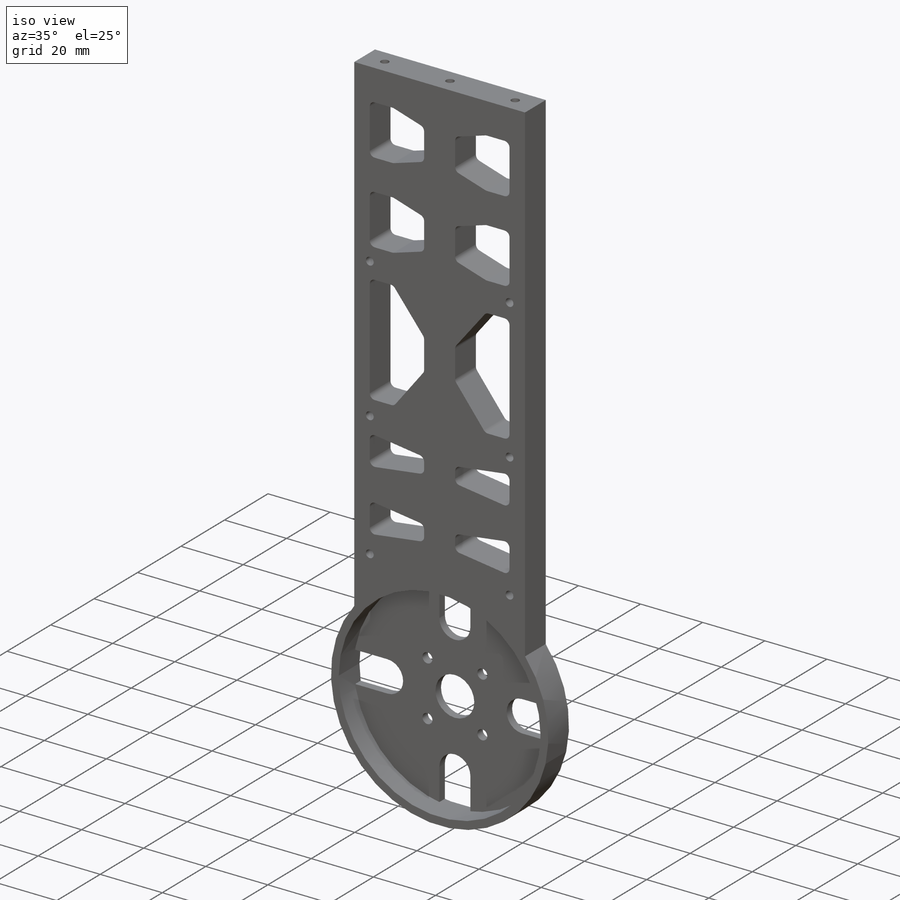
[diagram: iso view]
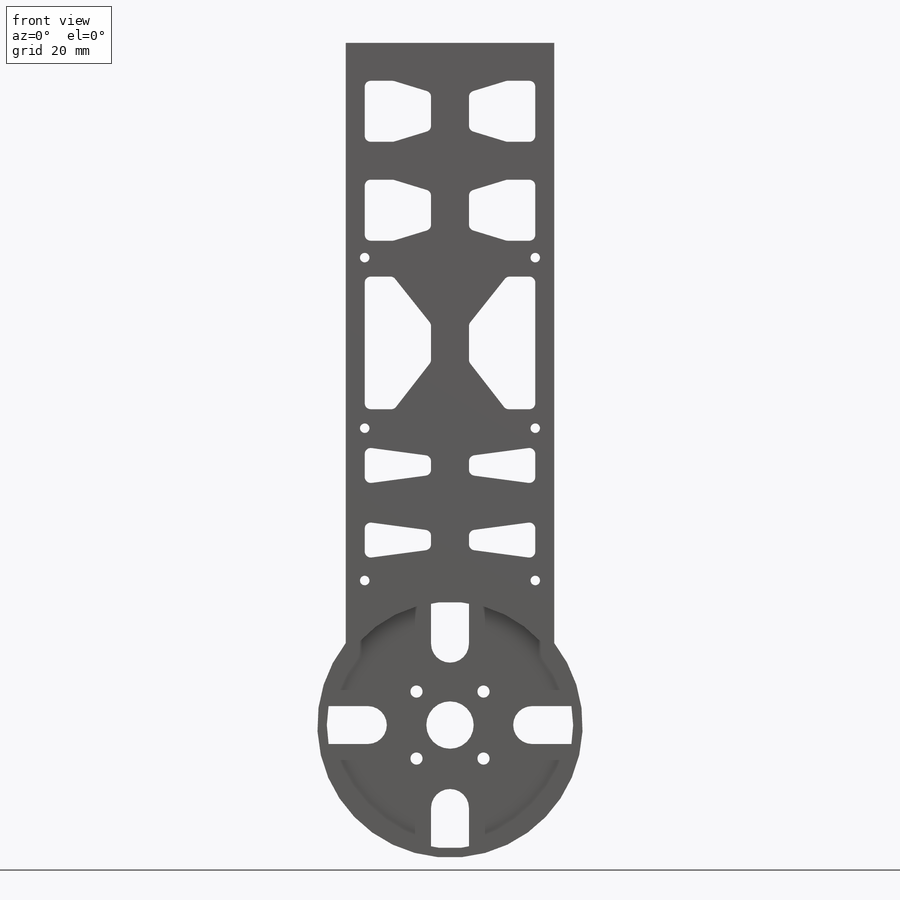
[diagram: front view]
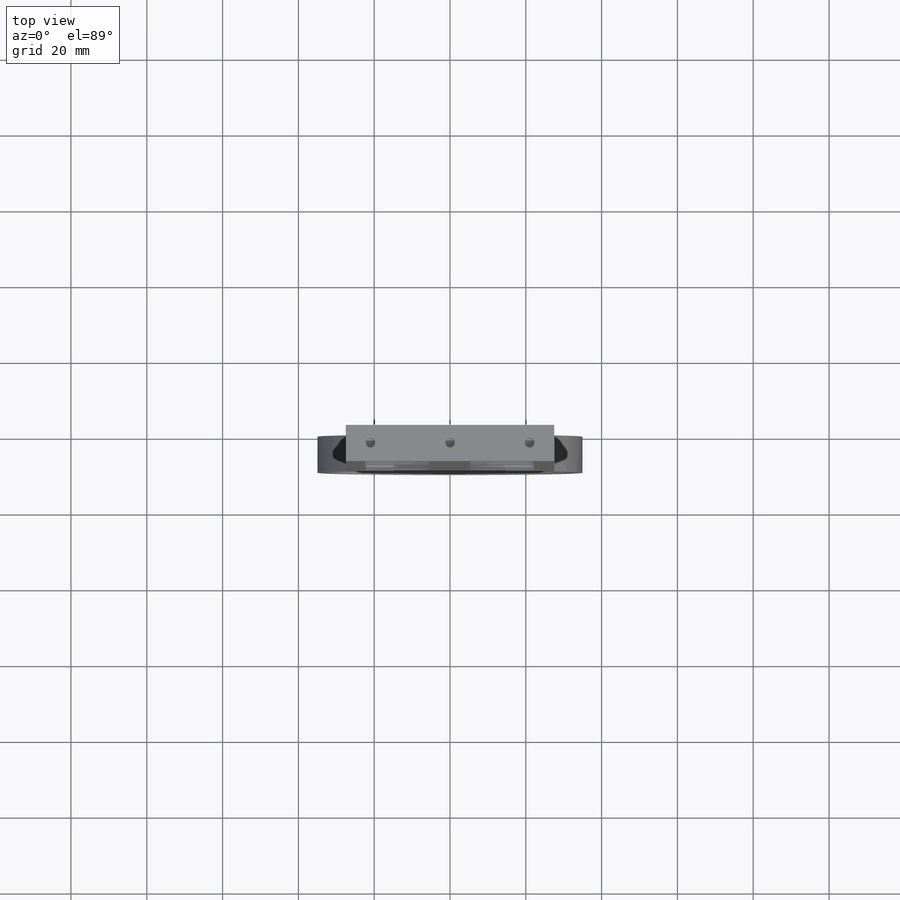
[diagram: top view]
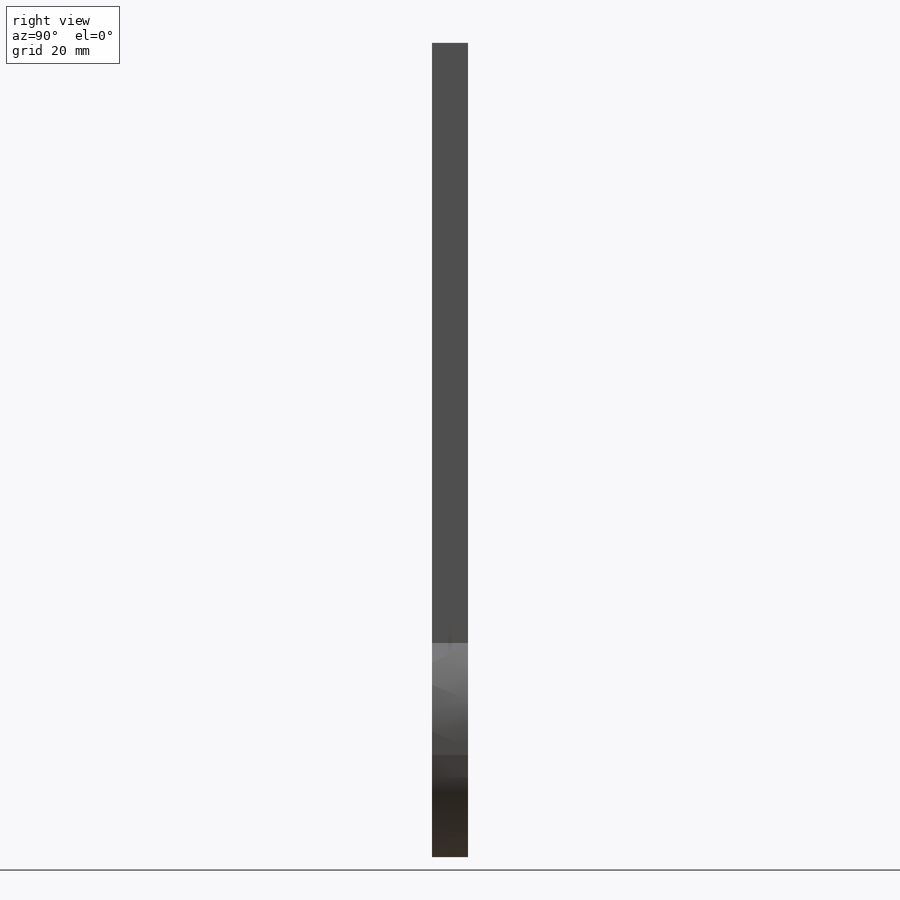
[diagram: right view]
SOLIDWORKS PART (.sldprt)
format: sldprt  version: not decoded by parser v0  size: 672,768 bytes
history: native  units: mm
features: sketch x10, hole x4, material x1, extrude x1, cut_extrude x1 (+13 scaffold rows collapsed)
feature tree (30):
  scaffold x13  (default folders/planes/origin — collapsed)
  material  "6061-T6 (SS)"
  sketch  "Sketch1"  dims[c1.D1=~65.110423mm c1.D3=~7.728169mm c1.D4=~2.574953mm c1.D5=4.0mm c2.D4=130.0mm c2.D5=~7.814265mm c3.D4=~8.800159mm c3.D1=~71.981281mm c3.D2=20.0mm c4.D1=10.0mm c4.D2=20.0mm c5.D1=1.5875mm c5.D3=35.0mm c5.D4=1.5875mm c5.D5=1.5875mm c5.D6=1.5875mm c5.D7=1.5875mm c5.D8=1.5875mm c6.D1=200.0mm c6.D2=55.0mm c6.D3=400.0mm c7.D3=135.0deg c8.D3=25.0mm c8.D4=25.0mm c8.D5=25.0mm c9.D5=45.0deg c10.D5=100.0mm c10.D4=45.0mm c11.D5=45.0mm c11.D4=5.0mm c12.D5=5.0mm c12.D4=45.0mm c12.D1=200.0mm c13.D4=43.3mm c13.D1=25.0mm c13.D2=25.0mm c13.D3=25.0mm c14.D4=25.0mm c14.D5=~17.727838mm c14.D6=~17.727838mm c15.D6=135.0deg c15.D5=~17.727838mm c15.D1=10.0mm c15.D2=10.0mm c16.D1=25.0mm c16.D2=25.0mm c16.D3=25.0mm c17.D1=100.0mm c18.D1=0.0deg c19.D1=45.0mm c19.D2=7.5mm c19.D3=7.5mm c20.D1=77.5mm c20.D2=7.5mm c20.D3=122.5mm c21.D1=12.5mm c21.D2=12.5mm c21.D3=12.5mm c21.D4=12.5mm c22.D1=5.0mm c22.D2=5.0mm c22.D3=45.0mm c23.D1=5.0mm c23.D2=5.0mm c24.D1=5.0mm c24.D2=5.0mm c25.D1=11.5mm c26.D1=60.0deg c27.D1=5.0mm c27.D2=5.0mm c28.D1=4.73mm c28.D2=4.73mm c29.D1=5.0mm c29.D2=5.0mm c30.D1=5.0mm c30.D2=5.0mm c31.D1=5.0mm c31.D2=5.0mm c31.D3=5.0mm c31.D4=5.0mm c32.D1=5.0mm c32.D2=5.0mm c33.D1=5.0mm c33.D2=5.0mm c34.D1=5.0mm c34.D2=5.0mm c35.D1=5.0mm c35.D2=5.0mm c36.D1=5.0mm c36.D2=5.0mm c37.D1=5.0mm c37.D2=5.0mm c38.D1=2.5mm c38.D2=2.5mm c38.D3=2.5mm c38.D4=2.5mm c39.D1=25.0mm c39.D2=215.0mm c39.D3=70.0mm c39.D4=45.0mm]
  extrude  "Boss-Extrude4"  Depth=9.525mm
  sketch  "Sketch3"  dims[D1=65.0mm]
  cut_extrude  "Cut-Extrude1"  Depth=7mm
  hole  "Tap Drill for M3x0.5 Tap1"  Diameter=2.5mm Depth=7.5mm
  sketch  "Sketch9"  dims[c1.D1=11.25mm c1.D2=11.25mm c2.D1=6.5mm c2.D2=6.5mm c2.D3=~0.089329mm]
  sketch  "Sketch10"  dims[hole-wizard template sketch: 47 standard entries collapsed; hole parameters kept: c15.Hole Depth=7.5mm c15.D3=~14.816244mm c15.Drill Angle=118.0deg]
  hole  "Tap Drill for M3x0.5 Tap2"  Diameter=2.5mm Depth=9.525mm
  sketch  "Sketch15"  dims[c1.D1=5.0mm c1.D2=5.0mm c1.D3=5.0mm c1.D4=5.0mm c1.D5=22.5mm c1.D6=22.5mm c1.D7=22.5mm c1.D8=22.5mm c1.D9=45.0mm c2.D6=45.0mm c2.D7=45.0mm c2.D9=45.0mm c2.D5=45.0mm c3.D6=45.0mm c3.D7=45.0mm c3.D8=45.0mm]
  sketch  "Sketch14"  dims[hole-wizard template sketch: 60 standard entries collapsed; hole parameters kept: c18.Thru Hole Depth=9.525mm]
  hole  "Tap Drill for M3x0.5 Tap3"  Diameter=2.5mm Depth=9.525mm
  sketch  "Sketch17"  dims[c1.D1=5.0mm c1.D2=5.0mm c1.D3=5.0mm c1.D4=5.0mm c2.D1=5.0mm c2.D5=~7.071068mm c2.D2=5.0mm c3.D5=45.0mm c3.D1=~38.139339mm]
  sketch  "Sketch16"  dims[hole-wizard template sketch: 60 standard entries collapsed; hole parameters kept: c18.Thru Hole Depth=9.525mm]
  hole  "M3 Clearance Hole2"  Diameter=3.2mm Depth=9.525mm
  sketch  "Sketch21"  dims[c1.D1=12.5mm c1.D2=12.5mm c1.D3=12.5mm c1.D4=12.5mm c2.D1=12.5mm c2.D2=12.5mm c2.D5=~17.67767mm]
  sketch  "Sketch20"  dims[hole-wizard template sketch: 60 standard entries collapsed; hole parameters kept: c18.Thru Hole Depth=9.525mm]
decode coverage: 16 of 16 modeling features carry decoded parameters
note: ~ marks probable driven/reference dimensions
summary: Diameter pulled from absorbed wizard sketch
note: suppression state not decoded; provenance and decode notes live in map.json
